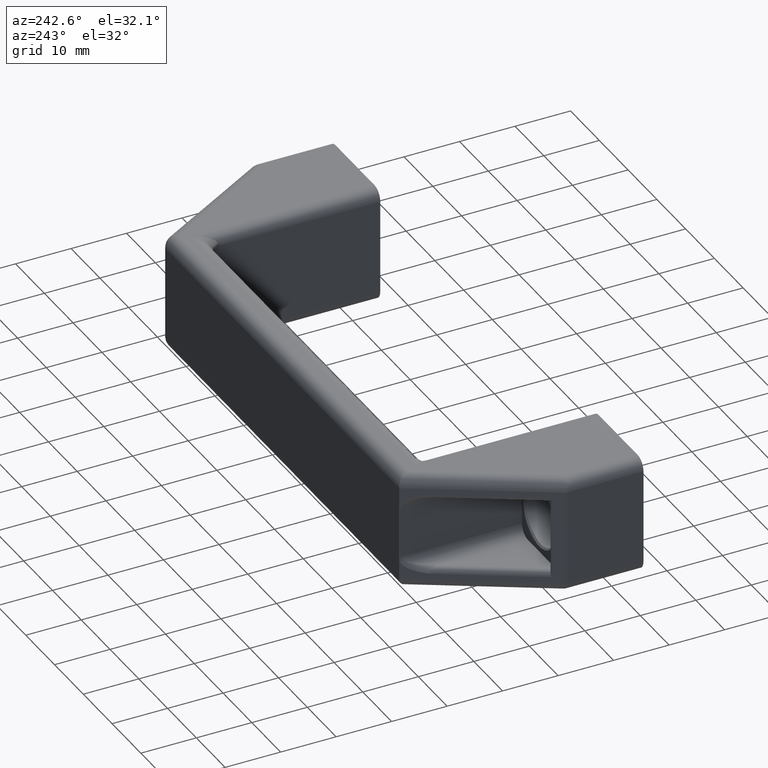
[diagram: clean part render]
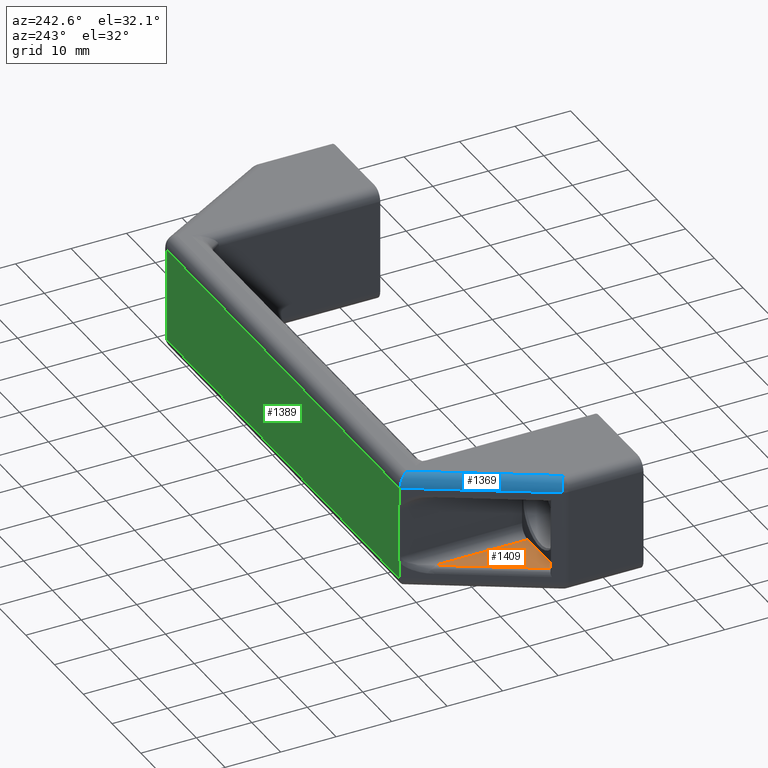
[diagram: same view with three faces highlighted in distinct colors, each labeled with its STEP entity id]
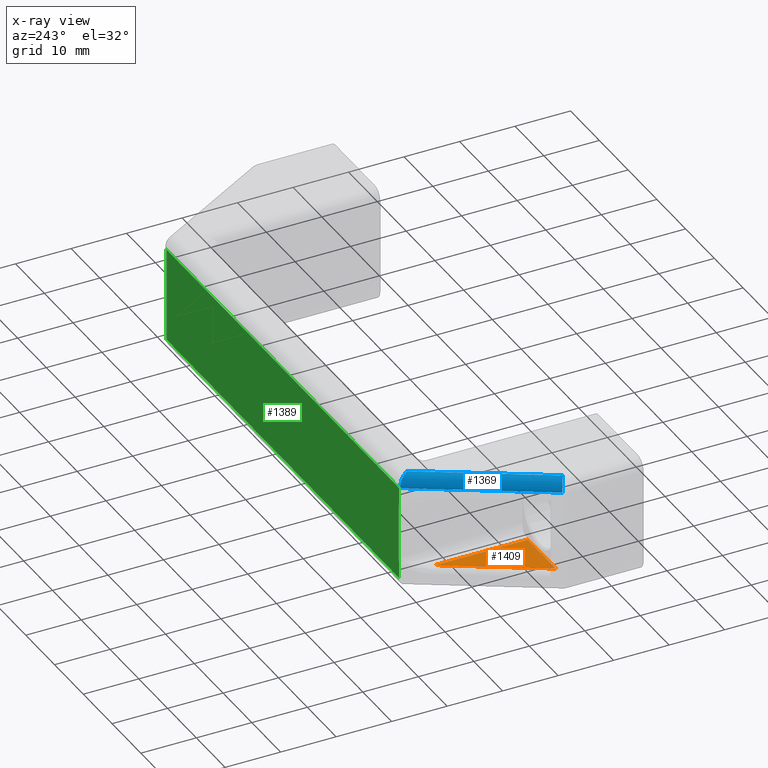
[diagram: x-ray of the same camera — body ghosted, the three highlighted faces saturated]
A machine part, auxiliary view with three faces highlighted in distinct colors.
The next image is the same camera in x-ray (body ghosted, the three faces saturated) — at least one of them is partly hidden behind the body in this view.
Their STEP definitions:

[orange] entity #1409 — the highlighted planar face has unit normal (-0, 0, -1).
#62=PLANE('',#1574);
#113=LINE('',#2365,#202);
#178=LINE('',#3006,#267);
#179=LINE('',#3008,#268);
#202=VECTOR('',#1697,9.82394475190482);
#267=VECTOR('',#1984,19.4072179252738);
#268=VECTOR('',#1987,16.7370910588008);
#396=FACE_OUTER_BOUND('',#499,.T.);
#499=EDGE_LOOP('',(#1298,#1299,#1300));
#640=VERTEX_POINT('',#2362);
#641=VERTEX_POINT('',#2364);
#707=VERTEX_POINT('',#2997);
#772=EDGE_CURVE('',#640,#641,#113,.T.);
#905=EDGE_CURVE('',#641,#707,#178,.T.);
#906=EDGE_CURVE('',#707,#640,#179,.T.);
#1298=ORIENTED_EDGE('',*,*,#905,.F.);
#1299=ORIENTED_EDGE('',*,*,#772,.F.);
#1300=ORIENTED_EDGE('',*,*,#906,.F.);
#1409=ADVANCED_FACE('',(#396),#62,.F.);
#1574=AXIS2_PLACEMENT_3D('',#3009,#1988,#1989);
#1697=DIRECTION('',(-1.,0.,3.70074341541719E-16));
#1984=DIRECTION('',(0.506200568764223,0.862415783820529,-1.87331842173464E-16));
#1987=DIRECTION('',(0.,-1.,0.));
#1988=DIRECTION('center_axis',(-3.70074341541719E-16,0.,-1.));
#1989=DIRECTION('ref_axis',(-1.,0.,3.5527136788005E-16));
#2362=CARTESIAN_POINT('',(-19.5977651009014,-10.2950464309019,4.));
#2364=CARTESIAN_POINT('',(-29.4217098528062,-10.2950464309019,4.));
#2365=CARTESIAN_POINT('',(-17.5977651009014,-10.2950464309019,4.));
#2997=CARTESIAN_POINT('',(-19.5977651009014,6.44204462789893,4.));
#3006=CARTESIAN_POINT('',(-23.4853493170808,-0.181246999666089,4.));
#3008=CARTESIAN_POINT('',(-19.5977651009014,11.8249535690981,4.));
#3009=CARTESIAN_POINT('Origin',(-17.5977651009014,11.8249535690981,4.));

[blue] entity #1369 — the highlighted cylindrical surface (edge-blend (fillet) strip) has radius 2 mm, axis along (0.5062, 0.8624, 0).
#83=ELLIPSE('',#1512,2.24993686053924,2.);
#133=LINE('',#2572,#222);
#147=LINE('',#2613,#236);
#222=VECTOR('',#1777,24.9805210715617);
#236=VECTOR('',#1825,26.0111596485679);
#289=CYLINDRICAL_SURFACE('',#1511,2.);
#356=FACE_OUTER_BOUND('',#459,.T.);
#459=EDGE_LOOP('',(#1118,#1119,#1120,#1121));
#566=CIRCLE('',#1504,2.);
#662=VERTEX_POINT('',#2569);
#663=VERTEX_POINT('',#2571);
#668=VERTEX_POINT('',#2589);
#673=VERTEX_POINT('',#2612);
#809=EDGE_CURVE('',#663,#662,#133,.T.);
#823=EDGE_CURVE('',#663,#668,#566,.T.);
#830=EDGE_CURVE('',#673,#668,#147,.T.);
#838=EDGE_CURVE('',#673,#662,#83,.T.);
#1118=ORIENTED_EDGE('',*,*,#823,.F.);
#1119=ORIENTED_EDGE('',*,*,#809,.T.);
#1120=ORIENTED_EDGE('',*,*,#838,.F.);
#1121=ORIENTED_EDGE('',*,*,#830,.T.);
#1369=ADVANCED_FACE('',(#356),#289,.T.);
#1504=AXIS2_PLACEMENT_3D('',#2598,#1810,#1811);
#1511=AXIS2_PLACEMENT_3D('',#2627,#1835,#1836);
#1512=AXIS2_PLACEMENT_3D('',#2628,#1837,#1838);
#1777=DIRECTION('',(0.506200568764223,0.862415783820529,0.));
#1810=DIRECTION('center_axis',(-0.506200568764223,-0.862415783820529,0.));
#1811=DIRECTION('ref_axis',(-0.609820048941806,0.357937854813671,0.707106781186548));
#1825=DIRECTION('',(-0.506200568764223,-0.862415783820529,0.));
#1835=DIRECTION('center_axis',(0.506200568764223,0.862415783820529,0.));
#1836=DIRECTION('ref_axis',(-0.609820048941807,0.35793785481367,0.707106781186548));
#1837=DIRECTION('center_axis',(0.845019319029769,0.534735776310568,-2.968379854754E-16));
#1838=DIRECTION('ref_axis',(-0.534735776310568,0.845019319029769,-9.86892604940984E-16));
#2569=CARTESIAN_POINT('',(-16.4526111264501,9.82495356909813,21.));
#2571=CARTESIAN_POINT('',(-29.0977651009013,-11.718642091078,21.));
#2572=CARTESIAN_POINT('',(-20.3245011508263,3.22840019423501,21.));
#2589=CARTESIAN_POINT('',(-30.8225966685424,-10.7062409535496,19.));
#2598=CARTESIAN_POINT('Origin',(-29.0977651009013,-11.718642091078,19.));
#2612=CARTESIAN_POINT('',(-17.6557328602203,11.726193682851,19.));
#2613=CARTESIAN_POINT('',(-22.0493327184674,4.24080133176346,19.));
#2627=CARTESIAN_POINT('Origin',(-20.3245011508263,3.22840019423501,19.));
#2628=CARTESIAN_POINT('Origin',(-16.4526111264501,9.82495356909812,19.));

[green] entity #1389 — the highlighted planar face has unit normal (0, 1, 0).
#57=PLANE('',#1549);
#163=LINE('',#2667,#252);
#167=LINE('',#2705,#256);
#168=LINE('',#2709,#257);
#169=LINE('',#2711,#258);
#170=LINE('',#2719,#259);
#171=LINE('',#2726,#260);
#252=VECTOR('',#1885,17.);
#256=VECTOR('',#1923,80.7403306281037);
#257=VECTOR('',#1928,80.7403306281037);
#258=VECTOR('',#1929,2.93460276053043);
#259=VECTOR('',#1930,8.73185145718269);
#260=VECTOR('',#1931,2.93460276053044);
#376=FACE_OUTER_BOUND('',#479,.T.);
#479=EDGE_LOOP('',(#1205,#1206,#1207,#1208,#1209,#1210,#1211,#1212));
#514=B_SPLINE_CURVE_WITH_KNOTS('',3,(#2713,#2714,#2715,#2716,#2717),
 .UNSPECIFIED.,.F.,.F.,(4,1,4),(0.0935282722938431,0.153450532255631,0.213870158942485),
 .UNSPECIFIED.);
#515=B_SPLINE_CURVE_WITH_KNOTS('',3,(#2721,#2722,#2723,#2724,#2725),
 .UNSPECIFIED.,.F.,.F.,(4,1,4),(0.,0.0604405754467676,0.120383789730416),
 .UNSPECIFIED.);
#688=VERTEX_POINT('',#2664);
#689=VERTEX_POINT('',#2666);
#692=VERTEX_POINT('',#2704);
#693=VERTEX_POINT('',#2708);
#694=VERTEX_POINT('',#2710);
#695=VERTEX_POINT('',#2712);
#696=VERTEX_POINT('',#2718);
#697=VERTEX_POINT('',#2720);
#858=EDGE_CURVE('',#688,#689,#163,.T.);
#870=EDGE_CURVE('',#689,#692,#167,.T.);
#872=EDGE_CURVE('',#693,#688,#168,.T.);
#873=EDGE_CURVE('',#694,#693,#169,.T.);
#874=EDGE_CURVE('',#695,#694,#514,.T.);
#875=EDGE_CURVE('',#696,#695,#170,.T.);
#876=EDGE_CURVE('',#697,#696,#515,.T.);
#877=EDGE_CURVE('',#692,#697,#171,.T.);
#1205=ORIENTED_EDGE('',*,*,#858,.F.);
#1206=ORIENTED_EDGE('',*,*,#872,.F.);
#1207=ORIENTED_EDGE('',*,*,#873,.F.);
#1208=ORIENTED_EDGE('',*,*,#874,.F.);
#1209=ORIENTED_EDGE('',*,*,#875,.F.);
#1210=ORIENTED_EDGE('',*,*,#876,.F.);
#1211=ORIENTED_EDGE('',*,*,#877,.F.);
#1212=ORIENTED_EDGE('',*,*,#870,.F.);
#1389=ADVANCED_FACE('',(#376),#57,.T.);
#1549=AXIS2_PLACEMENT_3D('',#2707,#1926,#1927);
#1885=DIRECTION('',(0.,0.,1.));
#1923=DIRECTION('',(-1.,0.,0.));
#1926=DIRECTION('center_axis',(0.,1.,0.));
#1927=DIRECTION('ref_axis',(0.,0.,1.));
#1928=DIRECTION('',(1.,0.,0.));
#1929=DIRECTION('',(0.,0.,-1.));
#1930=DIRECTION('',(-3.21724700267832E-16,0.,-1.));
#1931=DIRECTION('',(0.,0.,-1.));
#2664=CARTESIAN_POINT('',(63.2570809246474,11.8249535690981,2.));
#2666=CARTESIAN_POINT('',(63.2570809246474,11.8249535690981,19.));
#2667=CARTESIAN_POINT('',(63.2570809246474,11.8249535690981,0.));
#2704=CARTESIAN_POINT('',(-17.4832497034562,11.8249535690981,19.));
#2705=CARTESIAN_POINT('',(2.90223489909865,11.8249535690981,19.));
#2707=CARTESIAN_POINT('Origin',(-17.5977651009014,11.8249535690981,0.));
#2708=CARTESIAN_POINT('',(-17.4832497034562,11.8249535690981,2.));
#2709=CARTESIAN_POINT('',(2.90223489909865,11.8249535690981,2.));
#2710=CARTESIAN_POINT('',(-17.4832497034562,11.8249535690981,4.93460276053043));
#2711=CARTESIAN_POINT('',(-17.4832497034562,11.8249535690981,0.));
#2712=CARTESIAN_POINT('',(-17.3977663032771,11.8249535690981,6.13407421485084));
#2713=CARTESIAN_POINT('Ctrl Pts',(-17.3977663032771,11.8249535690981,6.13407421485084));
#2714=CARTESIAN_POINT('Ctrl Pts',(-17.3883814118322,11.8249535690981,5.93455869108187));
#2715=CARTESIAN_POINT('Ctrl Pts',(-17.4211191195752,11.8249535690981,5.53397705773774));
#2716=CARTESIAN_POINT('Ctrl Pts',(-17.4832497034562,11.8249535690981,5.13600151615328));
#2717=CARTESIAN_POINT('Ctrl Pts',(-17.4832497034562,11.8249535690981,4.93460276053043));
#2718=CARTESIAN_POINT('',(-17.3977663160664,11.8249535690981,14.8659255551409));
#2719=CARTESIAN_POINT('',(-17.3977651009014,11.8249535690981,8.5));
#2720=CARTESIAN_POINT('',(-17.4832497034562,11.8249535690981,16.0653972394696));
#2721=CARTESIAN_POINT('Ctrl Pts',(-17.4832497034562,11.8249535690981,16.0653972394696));
#2722=CARTESIAN_POINT('Ctrl Pts',(-17.4832497034562,11.8249535690981,15.863928654647));
#2723=CARTESIAN_POINT('Ctrl Pts',(-17.4211595192547,11.8249535690981,15.4663573725435));
#2724=CARTESIAN_POINT('Ctrl Pts',(-17.3883781603008,11.8249535690981,15.0655138012528));
#2725=CARTESIAN_POINT('Ctrl Pts',(-17.397766305243,11.8249535690981,14.8659257852407));
#2726=CARTESIAN_POINT('',(-17.4832497034562,11.8249535690981,0.));